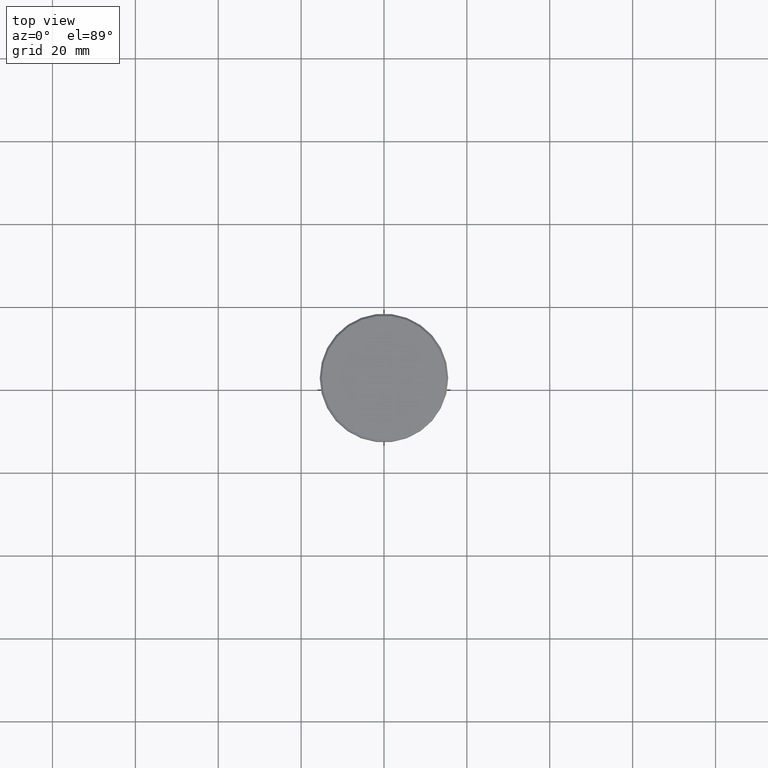
[diagram: clean part render]
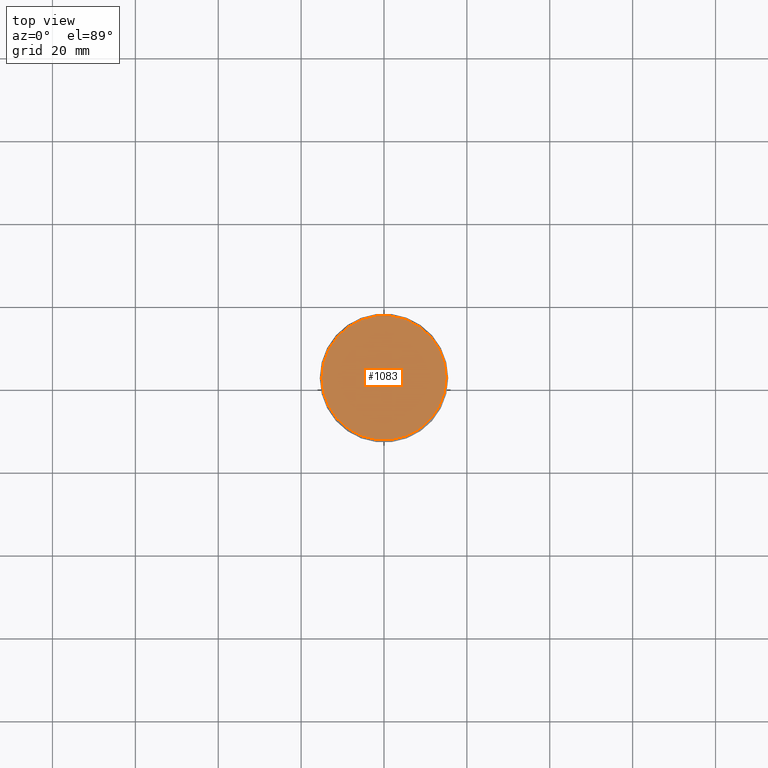
[diagram: same view with one face highlighted and labeled with its STEP entity id]
A machine part, top view. The second image highlights one B-rep face of the part: STEP entity #1083.
In plain terms, the highlighted planar face has unit normal (0, -0, 1).
Its self-contained STEP definition (entity closure, byte-faithful):
#4 = DIRECTION ( 'NONE',  ( 1.000000000000000000, 0.000000000000000000, 0.000000000000000000 ) ) ;
#37 = DIRECTION ( 'NONE',  ( 1.000000000000000000, 0.000000000000000000, 0.000000000000000000 ) ) ;
#38 = ORIENTED_EDGE ( 'NONE', *, *, #381, .T. ) ;
#67 = CARTESIAN_POINT ( 'NONE',  ( 14.99999999999998579, 1.867586368699712587E-15, 0.000000000000000000 ) ) ;
#110 = VERTEX_POINT ( 'NONE', #67 ) ;
#189 = AXIS2_PLACEMENT_3D ( 'NONE', #871, #1125, #37 ) ;
#381 = EDGE_CURVE ( 'NONE', #1107, #110, #1088, .T. ) ;
#479 = ORIENTED_EDGE ( 'NONE', *, *, #888, .T. ) ;
#561 = DIRECTION ( 'NONE',  ( -0.000000000000000000, -0.000000000000000000, 1.000000000000000000 ) ) ;
#574 = FACE_OUTER_BOUND ( 'NONE', #1067, .T. ) ;
#682 = PLANE ( 'NONE',  #189 ) ;
#713 = CARTESIAN_POINT ( 'NONE',  ( -14.99999999999998579, 0.000000000000000000, 0.000000000000000000 ) ) ;
#746 = CARTESIAN_POINT ( 'NONE',  ( 0.000000000000000000, 0.000000000000000000, 0.000000000000000000 ) ) ;
#815 = AXIS2_PLACEMENT_3D ( 'NONE', #853, #1103, #1044 ) ;
#853 = CARTESIAN_POINT ( 'NONE',  ( 0.000000000000000000, 0.000000000000000000, 0.000000000000000000 ) ) ;
#861 = CIRCLE ( 'NONE', #1056, 14.99999999999998579 ) ;
#871 = CARTESIAN_POINT ( 'NONE',  ( 0.000000000000000000, 0.000000000000000000, 0.000000000000000000 ) ) ;
#888 = EDGE_CURVE ( 'NONE', #110, #1107, #861, .T. ) ;
#1044 = DIRECTION ( 'NONE',  ( 1.000000000000000000, 0.000000000000000000, 0.000000000000000000 ) ) ;
#1056 = AXIS2_PLACEMENT_3D ( 'NONE', #746, #561, #4 ) ;
#1067 = EDGE_LOOP ( 'NONE', ( #38, #479 ) ) ;
#1083 = ADVANCED_FACE ( 'NONE', ( #574 ), #682, .T. ) ;
#1088 = CIRCLE ( 'NONE', #815, 14.99999999999998579 ) ;
#1103 = DIRECTION ( 'NONE',  ( -0.000000000000000000, -0.000000000000000000, 1.000000000000000000 ) ) ;
#1107 = VERTEX_POINT ( 'NONE', #713 ) ;
#1125 = DIRECTION ( 'NONE',  ( 0.000000000000000000, -0.000000000000000000, 1.000000000000000000 ) ) ;